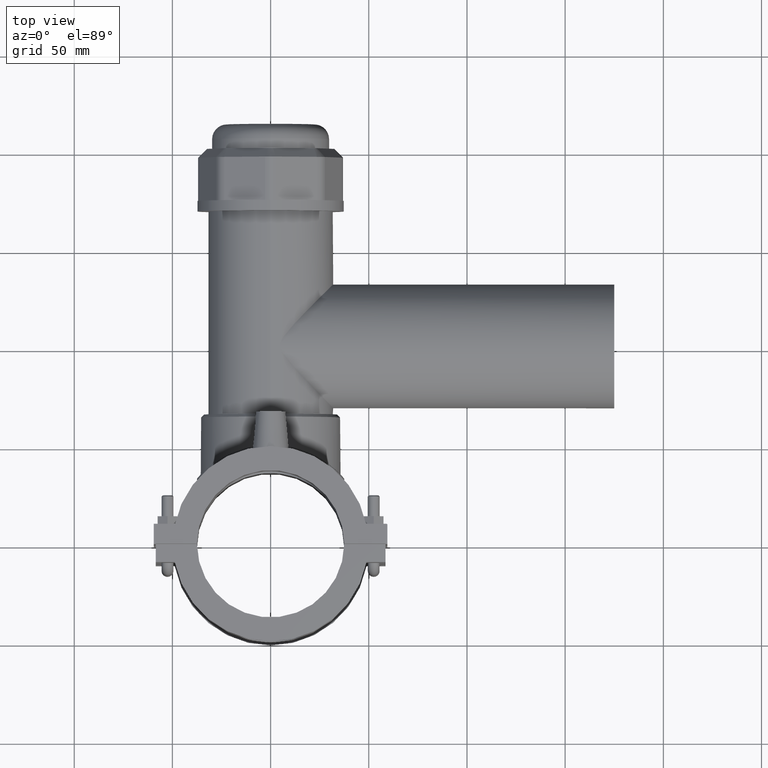
[diagram: clean part render]
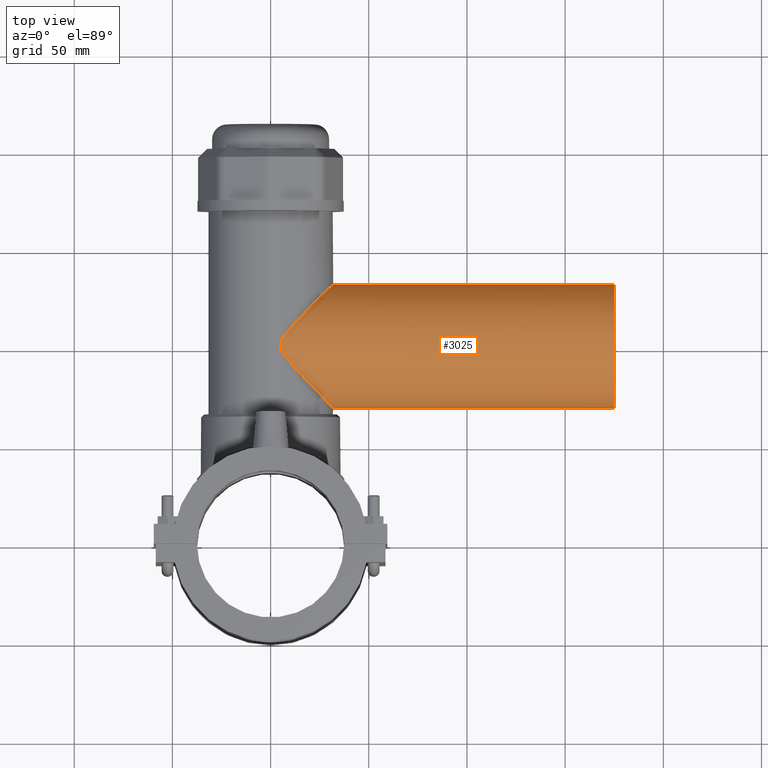
[diagram: same view with one face highlighted and labeled with its STEP entity id]
A machine part, top view. The second image highlights one B-rep face of the part: STEP entity #3025.
In plain terms, the highlighted cylindrical surface (bore or boss wall) has radius 31.5 mm, axis along (1, 0, 0).
Its self-contained STEP definition (entity closure, byte-faithful):
#601=FACE_BOUND('',#945,.T.);
#660=B_SPLINE_CURVE_WITH_KNOTS('',3,(#4578,#4579,#4580,#4581,#4582,#4583,
#4584,#4585,#4586,#4587,#4588,#4589,#4590,#4591,#4592,#4593,#4594,#4595,
#4596,#4597,#4598,#4599,#4600,#4601,#4602,#4603,#4604,#4605,#4606,#4607,
#4608,#4609,#4610,#4611,#4612,#4613,#4614,#4615,#4616,#4617,#4618,#4619,
#4620,#4621,#4622,#4623,#4624,#4625,#4626,#4627,#4628,#4629,#4630,#4631,
#4632,#4633,#4634,#4635,#4636,#4637,#4638,#4639,#4640,#4641,#4642,#4643,
#4644,#4645,#4646,#4647,#4648,#4649,#4650,#4651,#4652,#4653,#4654,#4655,
#4656,#4657,#4658,#4659),.UNSPECIFIED.,.T.,.F.,(4,2,2,2,2,2,2,2,2,2,2,2,
2,2,2,2,2,2,2,2,2,2,2,2,2,2,2,2,2,2,2,2,2,2,2,2,2,2,2,2,4),(0.,0.204426860717551,
0.408853721435103,0.817707442870205,1.63541488574041,2.45312232861062,3.27082977148082,
3.92072093622817,4.57061210097552,5.22050326572286,5.87039443047021,6.52028559521756,
7.1701767599649,7.82006792471225,8.4699590894596,9.2876665323298,10.1053739752,
10.9230814180702,11.3319351395053,11.5363620002228,11.7407888609404,11.9452157216579,
12.1496425823755,12.5584963038106,13.3762037466808,14.193911189551,15.0116186324212,
15.6615097971685,16.3114009619159,16.9612921266632,17.6111832914106,18.2610744561579,
18.9109656209053,19.5608567856526,20.2107479504,21.0284553932702,21.8461628361404,
22.6638702790106,23.0727240004457,23.2771508611633,23.4815777218808),
 .UNSPECIFIED.);
#706=CYLINDRICAL_SURFACE('',#3214,31.5);
#756=FACE_OUTER_BOUND('',#944,.T.);
#944=EDGE_LOOP('',(#2027));
#945=EDGE_LOOP('',(#2028));
#1184=CIRCLE('',#3215,31.5);
#1296=VERTEX_POINT('',#4575);
#1297=VERTEX_POINT('',#4577);
#1591=EDGE_CURVE('',#1296,#1296,#1184,.T.);
#1592=EDGE_CURVE('',#1297,#1297,#660,.T.);
#2027=ORIENTED_EDGE('',*,*,#1591,.F.);
#2028=ORIENTED_EDGE('',*,*,#1592,.F.);
#3025=ADVANCED_FACE('',(#756,#601),#706,.T.);
#3214=AXIS2_PLACEMENT_3D('',#4574,#3510,#3511);
#3215=AXIS2_PLACEMENT_3D('',#4576,#3512,#3513);
#3510=DIRECTION('center_axis',(1.,0.,0.));
#3511=DIRECTION('ref_axis',(0.,1.,0.));
#3512=DIRECTION('center_axis',(1.,0.,0.));
#3513=DIRECTION('ref_axis',(0.,0.,-1.));
#4574=CARTESIAN_POINT('Origin',(87.5,101.5,0.));
#4575=CARTESIAN_POINT('',(175.,133.,0.));
#4576=CARTESIAN_POINT('Origin',(175.,101.5,0.));
#4577=CARTESIAN_POINT('',(4.87499999999972,101.5,-31.5));
#4578=CARTESIAN_POINT('Ctrl Pts',(4.87499999999972,101.5,-31.5));
#4579=CARTESIAN_POINT('Ctrl Pts',(4.87499999999972,100.818577130942,-31.5));
#4580=CARTESIAN_POINT('Ctrl Pts',(5.01176389980557,100.229902809564,-31.4791205712237));
#4581=CARTESIAN_POINT('Ctrl Pts',(5.39222891904916,99.1395921878182,-31.4161847657097));
#4582=CARTESIAN_POINT('Ctrl Pts',(5.63843557027129,98.6388630717044,-31.3735881986864));
#4583=CARTESIAN_POINT('Ctrl Pts',(6.46257211673133,97.1824919240244,-31.2179915064503));
#4584=CARTESIAN_POINT('Ctrl Pts',(7.11914410169963,96.2808565151338,-31.0785638967634));
#4585=CARTESIAN_POINT('Ctrl Pts',(9.2634189945553,93.5415585589956,-30.534891192908));
#4586=CARTESIAN_POINT('Ctrl Pts',(10.8980037684837,91.7267803395712,-30.0120547947817));
#4587=CARTESIAN_POINT('Ctrl Pts',(14.3217755200662,88.0143553854221,-28.5372853606533));
#4588=CARTESIAN_POINT('Ctrl Pts',(16.1012792670577,86.1465664038823,-27.5886322454722));
#4589=CARTESIAN_POINT('Ctrl Pts',(19.5658727338835,82.5447869912419,-25.2499594100759));
#4590=CARTESIAN_POINT('Ctrl Pts',(21.2519729159753,80.81194340969,-23.8596706244426));
#4591=CARTESIAN_POINT('Ctrl Pts',(24.0323214346758,77.9657810193521,-21.0135082341046));
#4592=CARTESIAN_POINT('Ctrl Pts',(25.2443758399483,76.72993165119,-19.5603054119397));
#4593=CARTESIAN_POINT('Ctrl Pts',(27.4576362947513,74.4777949574437,-16.3083496639615));
#4594=CARTESIAN_POINT('Ctrl Pts',(28.4586053623804,73.4617026344249,-14.5093004150489));
#4595=CARTESIAN_POINT('Ctrl Pts',(30.1140244858279,71.7828606748598,-10.656341493415));
#4596=CARTESIAN_POINT('Ctrl Pts',(30.7700783702777,71.1184768846179,-8.59748111260224));
#4597=CARTESIAN_POINT('Ctrl Pts',(31.6507474643896,70.2268639412218,-4.35253827418394));
#4598=CARTESIAN_POINT('Ctrl Pts',(31.875,70.,-2.16630388249119));
#4599=CARTESIAN_POINT('Ctrl Pts',(31.875,70.,2.16630388249112));
#4600=CARTESIAN_POINT('Ctrl Pts',(31.6507474643896,70.2268639412218,4.35253827418387));
#4601=CARTESIAN_POINT('Ctrl Pts',(30.7700783702777,71.1184768846179,8.59748111260216));
#4602=CARTESIAN_POINT('Ctrl Pts',(30.1140244858279,71.7828606748598,10.6563414934149));
#4603=CARTESIAN_POINT('Ctrl Pts',(28.4586053623804,73.4617026344249,14.5093004150488));
#4604=CARTESIAN_POINT('Ctrl Pts',(27.4576362947514,74.4777949574436,16.3083496639614));
#4605=CARTESIAN_POINT('Ctrl Pts',(25.2443758399484,76.72993165119,19.5603054119396));
#4606=CARTESIAN_POINT('Ctrl Pts',(24.0323214346759,77.965781019352,21.0135082341045));
#4607=CARTESIAN_POINT('Ctrl Pts',(21.2519729159755,80.8119434096899,23.8596706244425));
#4608=CARTESIAN_POINT('Ctrl Pts',(19.5658727338836,82.5447869912418,25.2499594100758));
#4609=CARTESIAN_POINT('Ctrl Pts',(16.1012792670579,86.1465664038822,27.5886322454721));
#4610=CARTESIAN_POINT('Ctrl Pts',(14.3217755200664,88.014355385422,28.5372853606533));
#4611=CARTESIAN_POINT('Ctrl Pts',(10.8980037684839,91.7267803395711,30.0120547947816));
#4612=CARTESIAN_POINT('Ctrl Pts',(9.2634189945555,93.5415585589954,30.5348911929079));
#4613=CARTESIAN_POINT('Ctrl Pts',(7.11914410169986,96.2808565151337,31.0785638967634));
#4614=CARTESIAN_POINT('Ctrl Pts',(6.46257211673156,97.1824919240243,31.2179915064503));
#4615=CARTESIAN_POINT('Ctrl Pts',(5.63843557027151,98.6388630717043,31.3735881986864));
#4616=CARTESIAN_POINT('Ctrl Pts',(5.39222891904943,99.1395921878181,31.4161847657097));
#4617=CARTESIAN_POINT('Ctrl Pts',(5.01176389980583,100.229902809564,31.4791205712237));
#4618=CARTESIAN_POINT('Ctrl Pts',(4.87499999999997,100.818577130941,31.5));
#4619=CARTESIAN_POINT('Ctrl Pts',(4.87499999999997,102.181422869058,31.5));
#4620=CARTESIAN_POINT('Ctrl Pts',(5.01176389980584,102.770097190436,31.4791205712237));
#4621=CARTESIAN_POINT('Ctrl Pts',(5.39222891904941,103.860407812182,31.4161847657097));
#4622=CARTESIAN_POINT('Ctrl Pts',(5.6384355702715,104.361136928296,31.3735881986864));
#4623=CARTESIAN_POINT('Ctrl Pts',(6.46257211673153,105.817508075976,31.2179915064503));
#4624=CARTESIAN_POINT('Ctrl Pts',(7.11914410169983,106.719143484866,31.0785638967634));
#4625=CARTESIAN_POINT('Ctrl Pts',(9.26341899455546,109.458441441005,30.534891192908));
#4626=CARTESIAN_POINT('Ctrl Pts',(10.8980037684838,111.273219660429,30.0120547947816));
#4627=CARTESIAN_POINT('Ctrl Pts',(14.3217755200663,114.985644614578,28.5372853606533));
#4628=CARTESIAN_POINT('Ctrl Pts',(16.1012792670578,116.853433596118,27.5886322454721));
#4629=CARTESIAN_POINT('Ctrl Pts',(19.5658727338835,120.455213008758,25.2499594100759));
#4630=CARTESIAN_POINT('Ctrl Pts',(21.2519729159754,122.18805659031,23.8596706244426));
#4631=CARTESIAN_POINT('Ctrl Pts',(24.0323214346759,125.034218980648,21.0135082341046));
#4632=CARTESIAN_POINT('Ctrl Pts',(25.2443758399483,126.27006834881,19.5603054119397));
#4633=CARTESIAN_POINT('Ctrl Pts',(27.4576362947514,128.522205042556,16.3083496639615));
#4634=CARTESIAN_POINT('Ctrl Pts',(28.4586053623804,129.538297365575,14.5093004150488));
#4635=CARTESIAN_POINT('Ctrl Pts',(30.1140244858279,131.21713932514,10.656341493415));
#4636=CARTESIAN_POINT('Ctrl Pts',(30.7700783702777,131.881523115382,8.59748111260222));
#4637=CARTESIAN_POINT('Ctrl Pts',(31.6507474643896,132.773136058778,4.35253827418392));
#4638=CARTESIAN_POINT('Ctrl Pts',(31.875,133.,2.16630388249117));
#4639=CARTESIAN_POINT('Ctrl Pts',(31.875,133.,-2.16630388249115));
#4640=CARTESIAN_POINT('Ctrl Pts',(31.6507474643896,132.773136058778,-4.35253827418391));
#4641=CARTESIAN_POINT('Ctrl Pts',(30.7700783702777,131.881523115382,-8.5974811126022));
#4642=CARTESIAN_POINT('Ctrl Pts',(30.1140244858279,131.21713932514,-10.656341493415));
#4643=CARTESIAN_POINT('Ctrl Pts',(28.4586053623804,129.538297365575,-14.5093004150488));
#4644=CARTESIAN_POINT('Ctrl Pts',(27.4576362947513,128.522205042556,-16.3083496639614));
#4645=CARTESIAN_POINT('Ctrl Pts',(25.2443758399483,126.27006834881,-19.5603054119397));
#4646=CARTESIAN_POINT('Ctrl Pts',(24.0323214346759,125.034218980648,-21.0135082341045));
#4647=CARTESIAN_POINT('Ctrl Pts',(21.2519729159754,122.18805659031,-23.8596706244425));
#4648=CARTESIAN_POINT('Ctrl Pts',(19.5658727338835,120.455213008758,-25.2499594100758));
#4649=CARTESIAN_POINT('Ctrl Pts',(16.1012792670578,116.853433596118,-27.5886322454721));
#4650=CARTESIAN_POINT('Ctrl Pts',(14.3217755200663,114.985644614578,-28.5372853606533));
#4651=CARTESIAN_POINT('Ctrl Pts',(10.8980037684837,111.273219660429,-30.0120547947816));
#4652=CARTESIAN_POINT('Ctrl Pts',(9.26341899455529,109.458441441005,-30.534891192908));
#4653=CARTESIAN_POINT('Ctrl Pts',(7.11914410169962,106.719143484866,-31.0785638967634));
#4654=CARTESIAN_POINT('Ctrl Pts',(6.46257211673134,105.817508075976,-31.2179915064503));
#4655=CARTESIAN_POINT('Ctrl Pts',(5.63843557027129,104.361136928296,-31.3735881986864));
#4656=CARTESIAN_POINT('Ctrl Pts',(5.39222891904917,103.860407812182,-31.4161847657097));
#4657=CARTESIAN_POINT('Ctrl Pts',(5.01176389980558,102.770097190436,-31.4791205712237));
#4658=CARTESIAN_POINT('Ctrl Pts',(4.87499999999972,102.181422869059,-31.5));
#4659=CARTESIAN_POINT('Ctrl Pts',(4.87499999999971,101.5,-31.5));